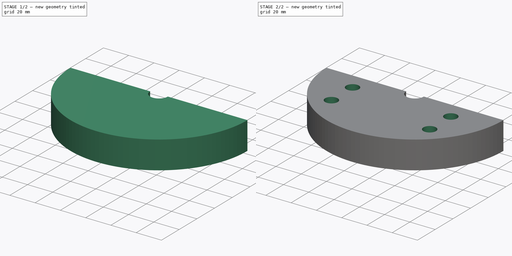
[diagram: build sequence overview — one tinted view per stage of 2, left to right]
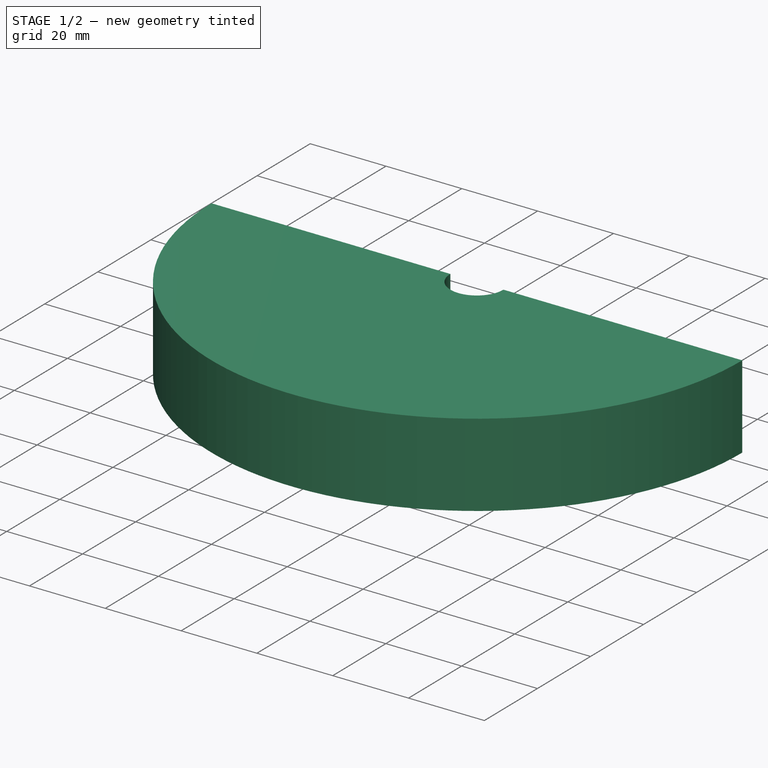
[diagram: stage 1 of 2 — iso view after this stage's code; geometry added in this stage tinted green]
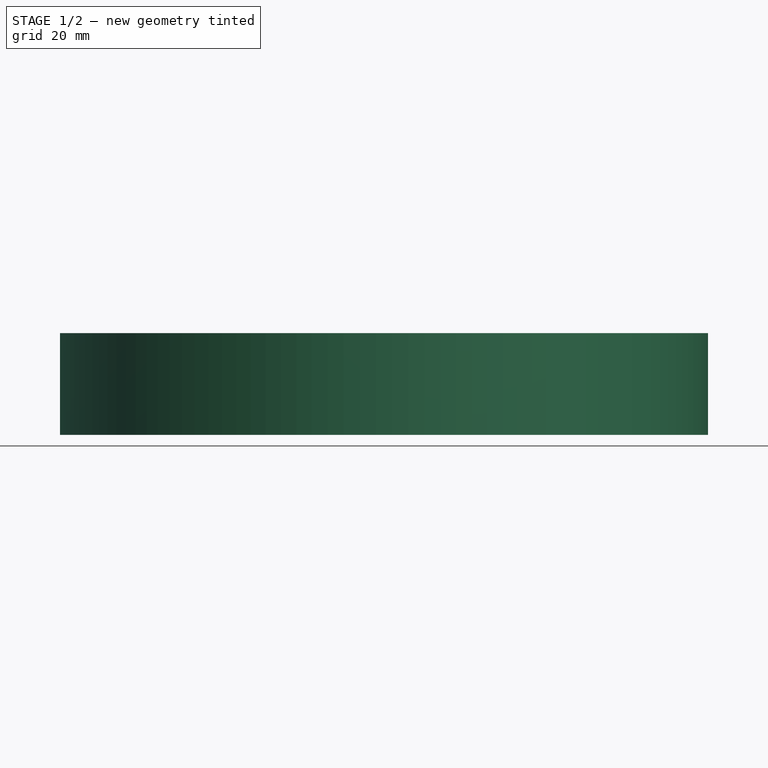
[diagram: stage 1 of 2 — front view after this stage's code; geometry added in this stage tinted green]
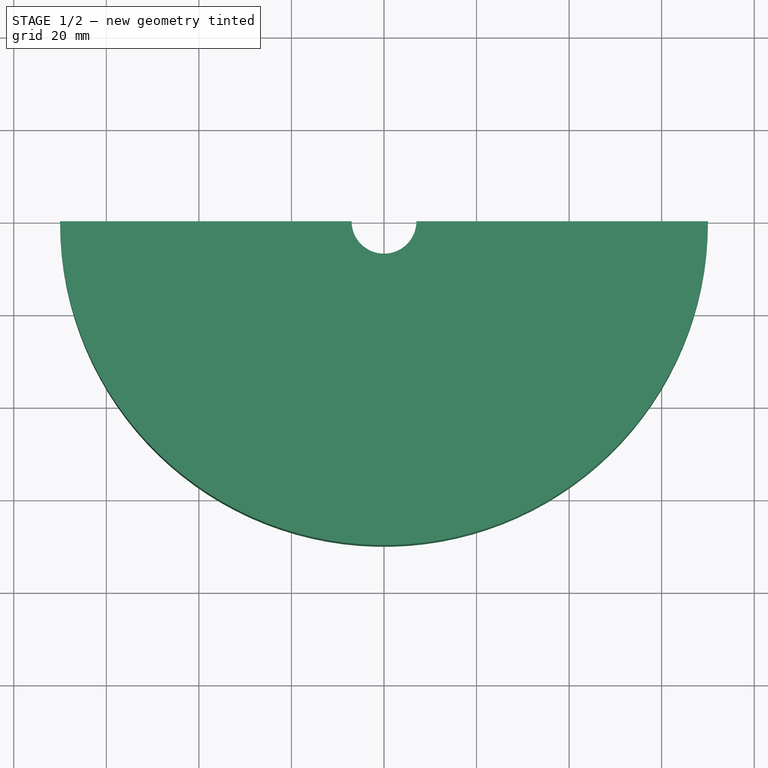
[diagram: stage 1 of 2 — top view after this stage's code; geometry added in this stage tinted green]
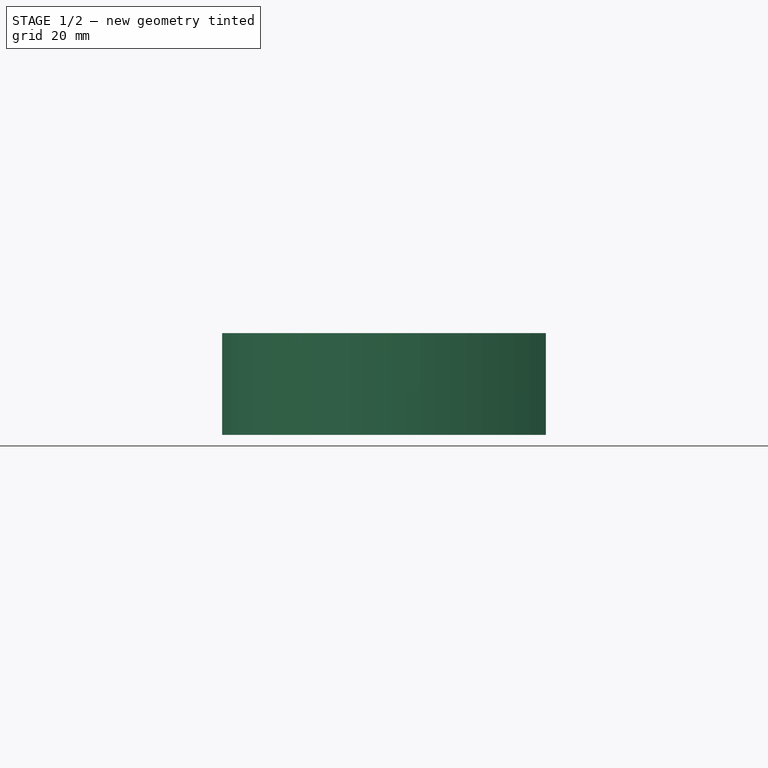
[diagram: stage 1 of 2 — right view after this stage's code; geometry added in this stage tinted green]
FCSTD DOCUMENT  (FreeCAD 0.18.4R)
Label: крышка001
License: All rights reserved
LicenseURL: http://en.wikipedia.org/wiki/All_rights_reserved
objects: Sketcher::SketchObject×2, PartDesign::Pad×2, PartDesign::Pocket×1, PartDesign::Body×1
note: 9 computed .brp shape members not serialized (recipe doc carries the construction recipe); baked Part::Feature solids carry a one-line shape summary decoded from their .brp

FEATURE [Sketcher::SketchObject] Sketch
  MapMode = 5
  Support = -> [XY_Plane]
  sketch-geometry (4):
    g0: ArcOfCircle CenterX=0 CenterY=0 CenterZ=0 NormalX=0 NormalY=0 NormalZ=1 AngleXU=0 Radius=7 StartAngle=3.14159 EndAngle=6.28319
    g1: ArcOfCircle CenterX=0 CenterY=0 CenterZ=0 NormalX=0 NormalY=0 NormalZ=1 AngleXU=0 Radius=70 StartAngle=3.14159 EndAngle=6.28319
    g2: LineSegment StartX=-70 StartY=8.6e-15 StartZ=0 EndX=-7 EndY=8.6e-15 EndZ=0
    g3: LineSegment StartX=7 StartY=-1.7e-15 StartZ=0 EndX=70 EndY=-1.7e-15 EndZ=0
  constraints (12):
    c: Coincident(g0,g-1)
    c: Coincident(g1,g0)
    c: Coincident(g2,g1)
    c: Coincident(g2,g0)
    c: Horizontal(g2)
    c: Coincident(g3,g0)
    c: Coincident(g3,g1)
    c: Horizontal(g3)
    c: Radius(g0) = 7
    c: Radius(g1) = 70
    c: DistanceY(g0,g0) = 0
    c: DistanceY(g0,g0) = 0
FEATURE [PartDesign::Pad] Pad
  Length = 22
  Length2 = 100
  Profile = -> Sketch
  Type = 0
FEATURE [Sketcher::SketchObject] Sketch001
  MapMode = 5
  Placement = pos=(0,0,22) rot=(0,0,1;0rad)
  Support = -> [Pad]
  sketch-geometry (4):
    g0: Circle CenterX=-38.8909 CenterY=-38.8909 CenterZ=0 NormalX=0 NormalY=0 NormalZ=1 AngleXU=0 Radius=5
    g1: Circle CenterX=38.8909 CenterY=-38.8909 CenterZ=0 NormalX=0 NormalY=0 NormalZ=1 AngleXU=0 Radius=5
    g2: Circle CenterX=-38.8909 CenterY=-15 CenterZ=0 NormalX=0 NormalY=0 NormalZ=1 AngleXU=0 Radius=5
    g3: Circle CenterX=38.8909 CenterY=-15 CenterZ=0 NormalX=0 NormalY=0 NormalZ=1 AngleXU=0 Radius=5
  constraints (12):
    c: Diameter(g0) = 10
    c: Diameter(g1) = 10
    c: DistanceX(g0) = -38.8909
    c: DistanceY(g0) = -38.8909
    c: DistanceX(g1) = 38.8909
    c: DistanceY(g1) = -38.8909
    c: Equal(g0,g2) = 10
    c: Equal(g1,g3) = 10
    c: DistanceX(g2,g-1) = 38.8909
    c: DistanceX(g-1,g3) = 38.8909
    c: DistanceY(g2,g-1) = 15
    c: DistanceY(g3,g-1) = 15
FEATURE [PartDesign::Pad] Pad001
  BaseFeature = -> Pad
  Length = 17
  Length2 = 100
  Offset = 8
  Profile = -> Sketch001
  Reversed = true
  Type = 0
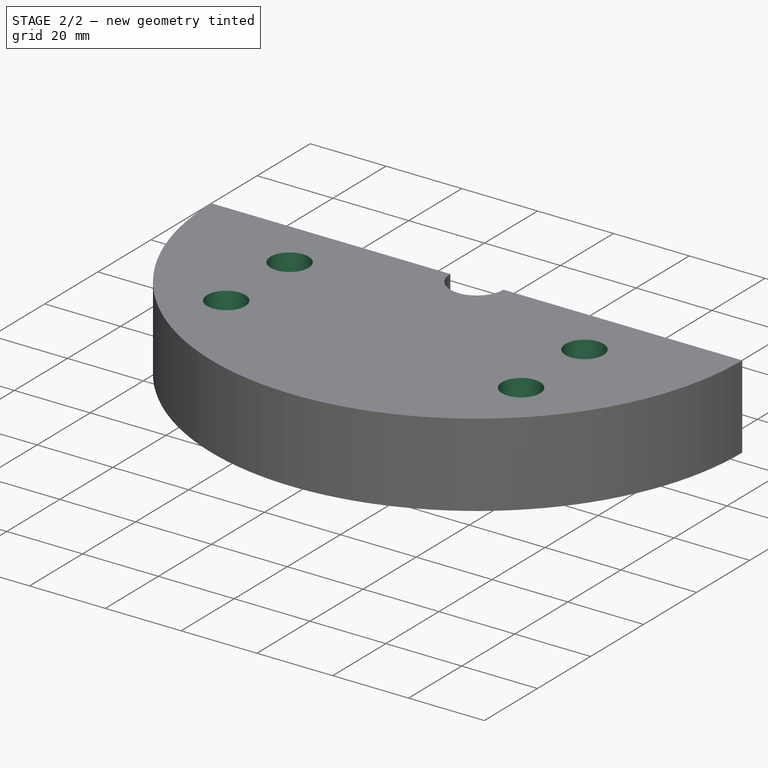
[diagram: stage 2 of 2 — iso view after this stage's code; geometry added in this stage tinted green]
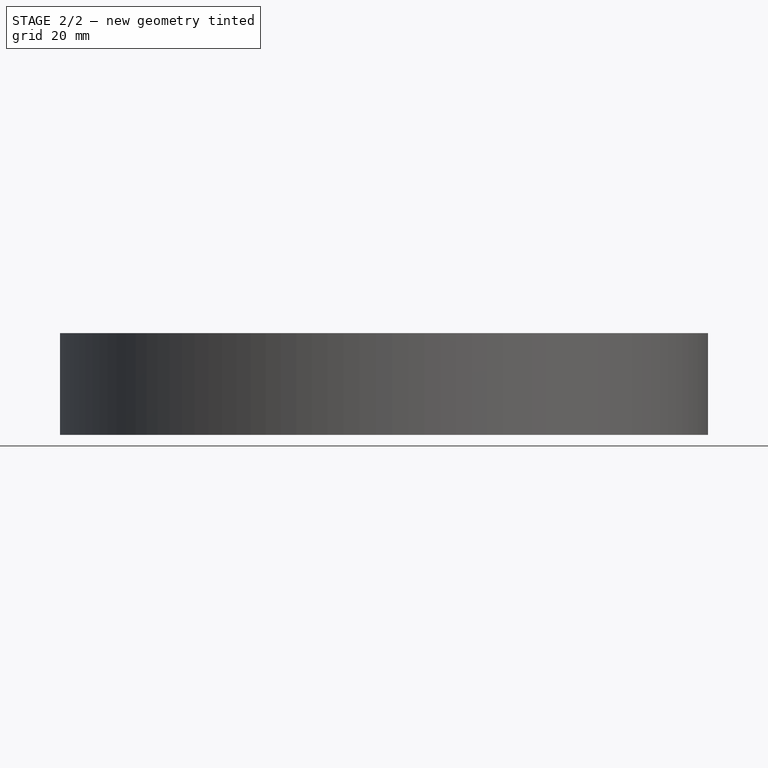
[diagram: stage 2 of 2 — front view after this stage's code; geometry added in this stage tinted green]
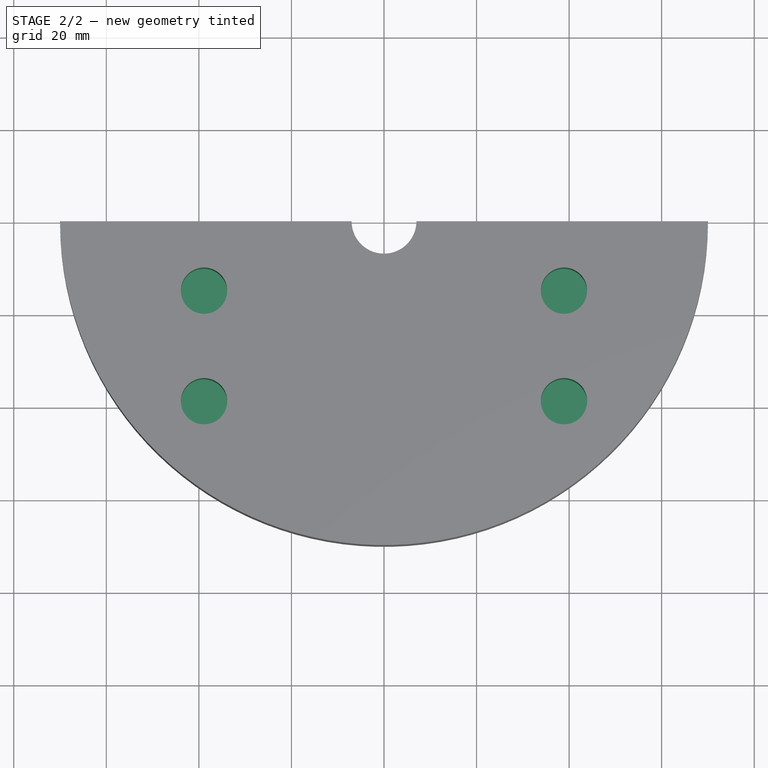
[diagram: stage 2 of 2 — top view after this stage's code; geometry added in this stage tinted green]
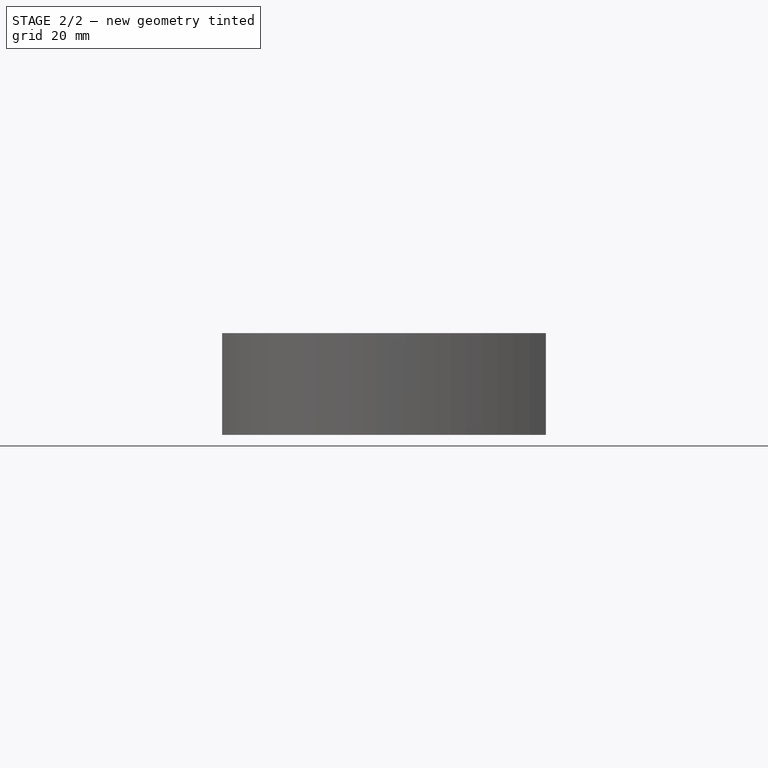
[diagram: stage 2 of 2 — right view after this stage's code; geometry added in this stage tinted green]
FEATURE [PartDesign::Pocket] Pocket
  BaseFeature = -> Pad001
  Length = 17
  Length2 = 100
  Profile = -> Sketch001
  Type = 0
FEATURE [PartDesign::Body] Body
  Group = -> [Sketch,Pad,Sketch001,Pad001,Pocket]
  Origin = -> Origin
  Tip = -> Pocket
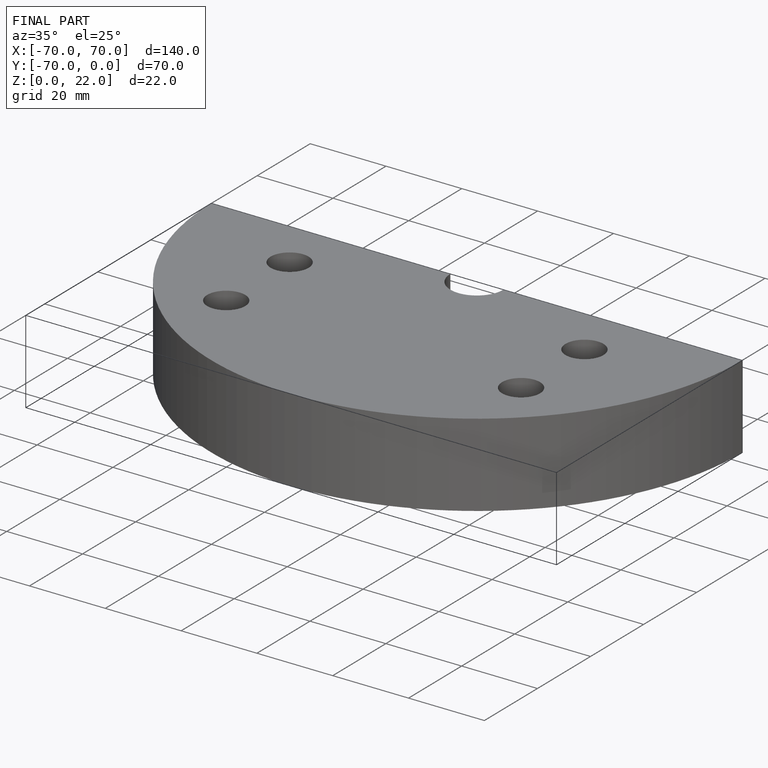
[diagram: finished part — iso view with bounding-box wireframe]
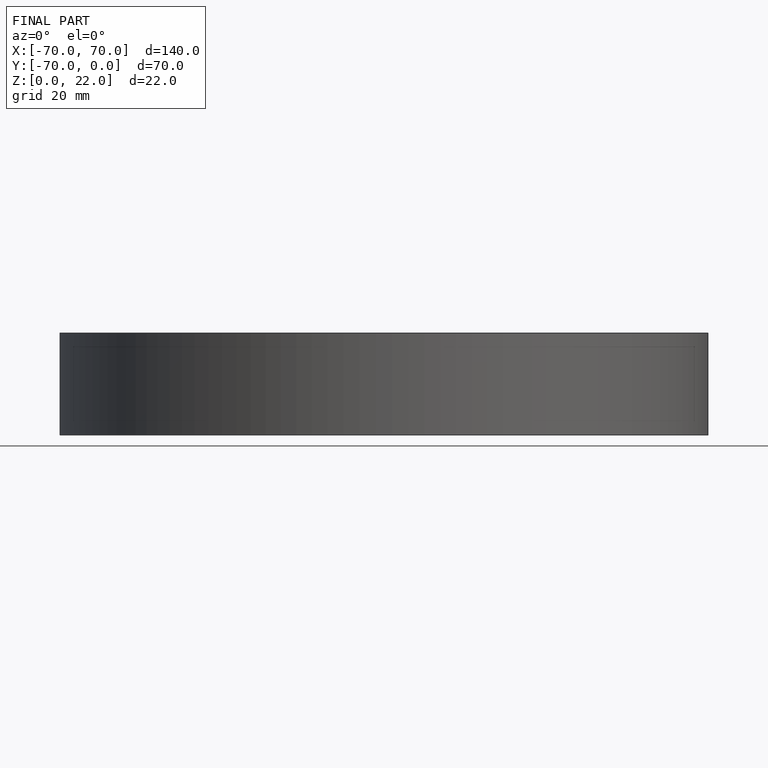
[diagram: finished part — front view with bounding-box wireframe]
